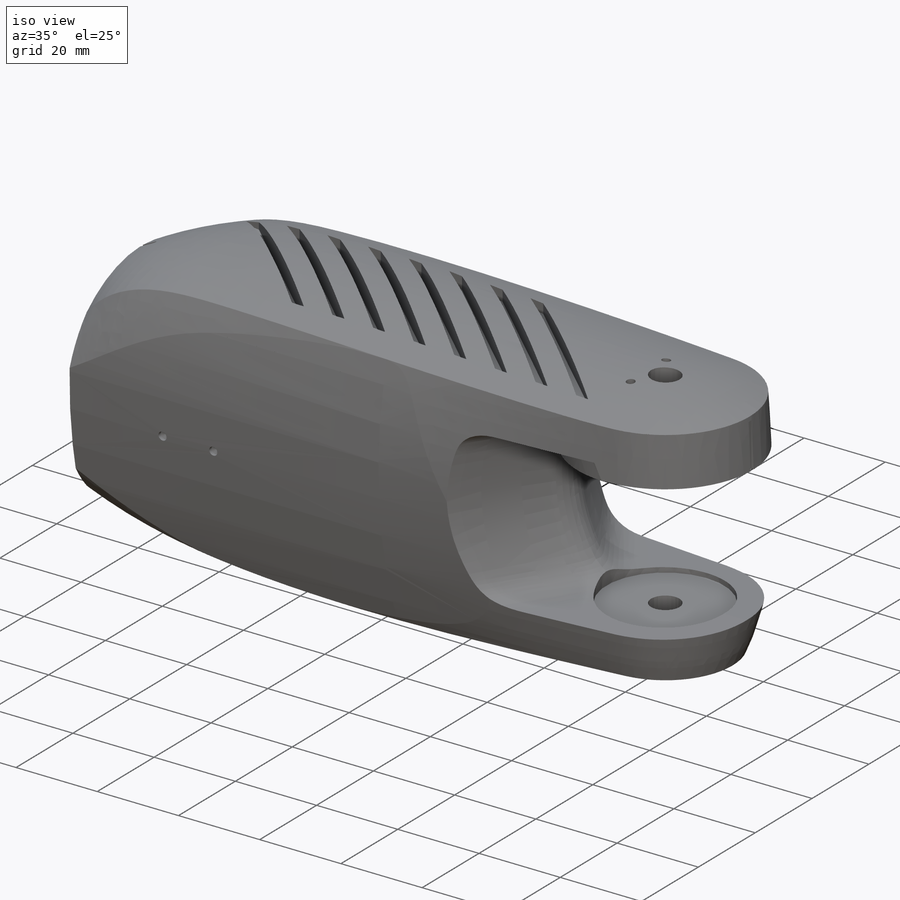
[diagram: iso view]
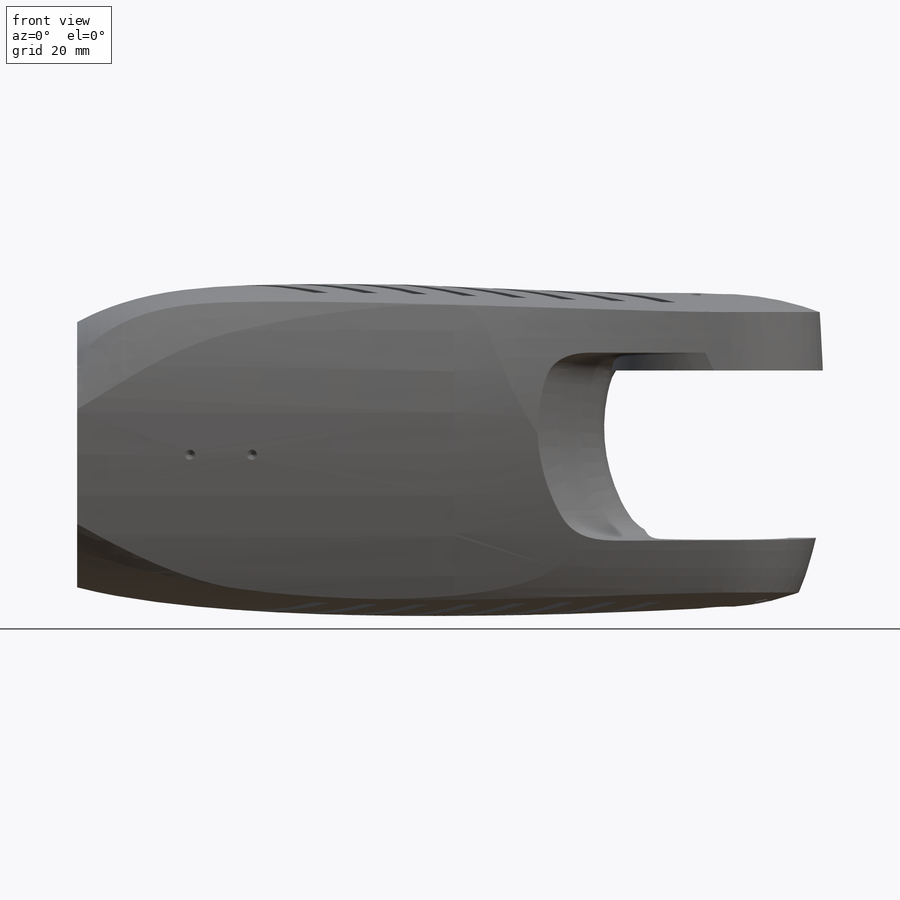
[diagram: front view]
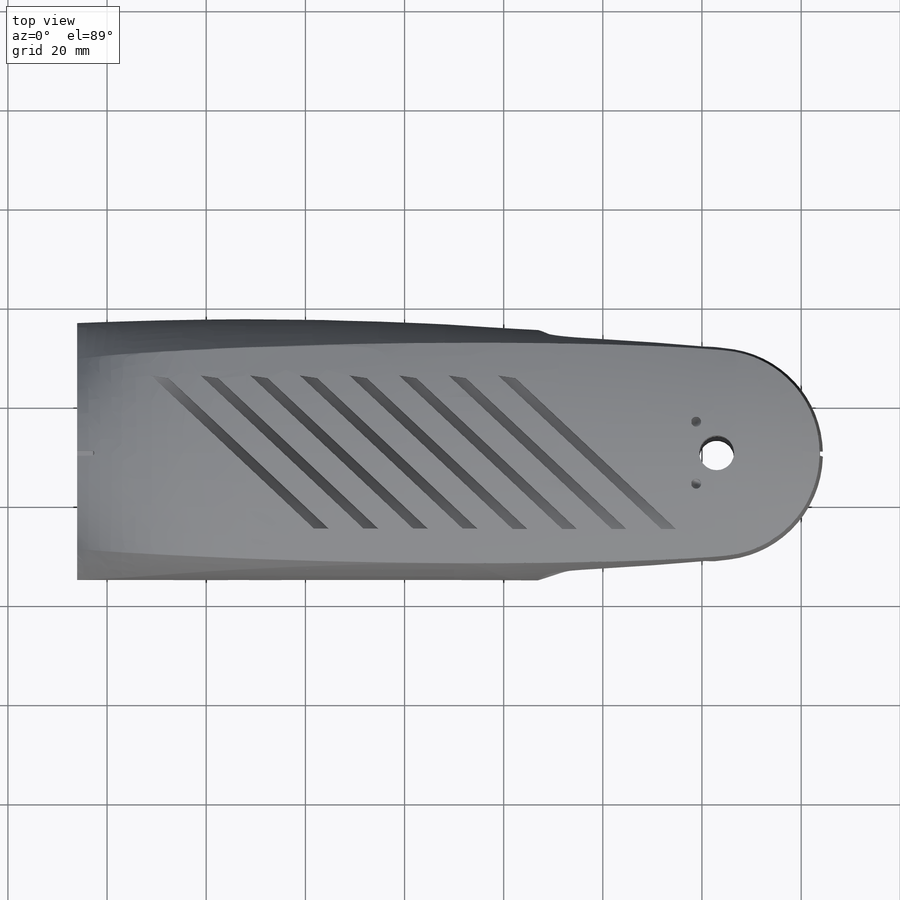
[diagram: top view]
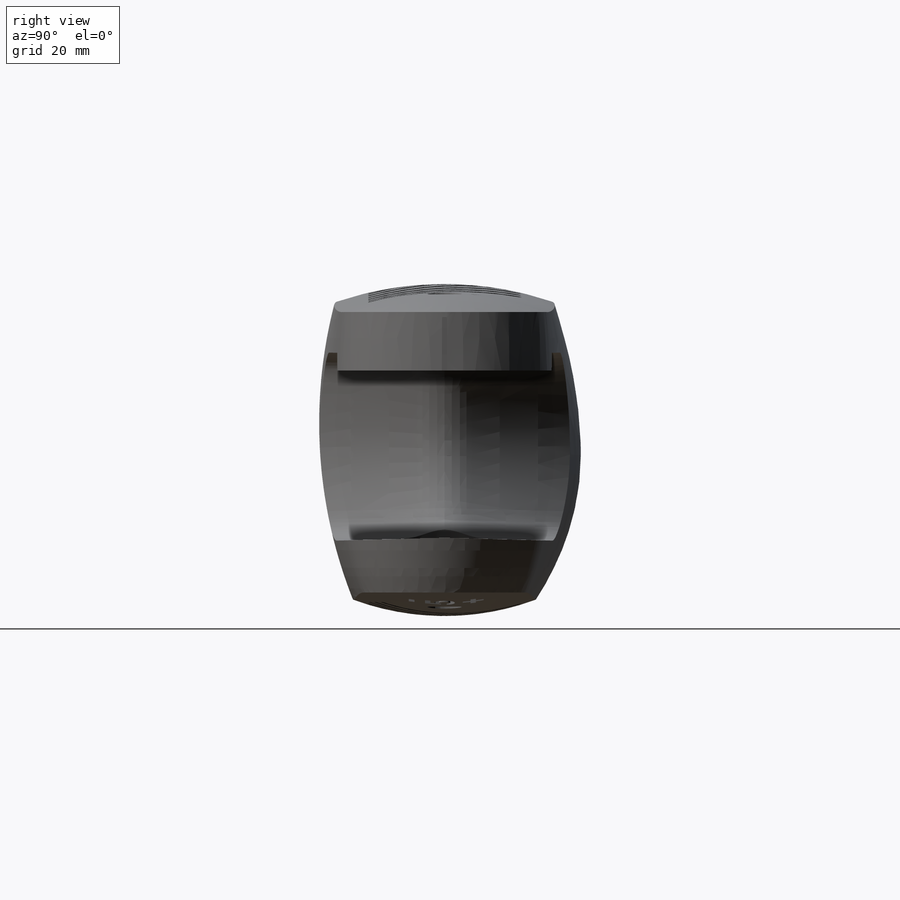
[diagram: right view]
SOLIDWORKS PART (.sldprt)
format: sldprt  version: not decoded by parser v0  size: 3,646,464 bytes
history: native  units: mm
features: sketch x12, cut_extrude x9, plane x7, chamfer x4, extrude x3, mirror x2, delete_body x2, material x1 (+10 scaffold rows collapsed)
feature tree (50):
  scaffold x10  (default folders/planes/origin — collapsed)
  material  "Materiał <nieokreślony>"
  plane  "Płaszczyzna przednia"
  plane  "Płaszczyzna górna"
  plane  "Płaszczyzna prawa"
  plane  "Płaszczyzna1"  Offset=270mm
  sketch  "Szkic3"  dims[D1=7.0mm]
  cut_extrude  "Wytnij-wyciągnięcie3"  Depth=10mm
  sketch  "Szkic4"  dims[D1=19.1mm]
  cut_extrude  "Wytnij-wyciągnięcie4"  Depth=6mm
  plane  "Płaszczyzna2"
  mirror  "Lustro1"
  chamfer  "Sfazowanie2"  Distance=1mm Angle=30deg
  sketch  "Szkic1"
  cut_extrude  "Wytnij-wyciągnięcie1"  [1 undecoded]
  sketch  "Szkic2"  dims[D1=0.01mm]
  delete_body  "Obiekt-Usuń2"
  delete_body  "Powierzchnia-wypełnij6"
  plane  "Płaszczyzna5"  Offset=32mm
  sketch  "Szkic8"  dims[D1=8.0]
  cut_extrude  "Wytnij-wyciągnięcie9"  Depth=4mm
  mirror  "Lustro2"
  cut_extrude  "Wytnij-wyciągnięcie2"  [1 undecoded]
  cut_extrude  "Wytnij-wyciągnięcie10"  [1 undecoded]
  sketch  "Szkic2<2>"
  plane  "Płaszczyzna3"
  sketch  "Szkic5"  dims[D1=5.0mm]
  cut_extrude  "Wytnij-wyciągnięcie5"  Depth=7mm
  extrude  "Dodanie-wyciągnięcie1"  [1 undecoded]
  sketch  "Szkic5<2>"  dims[D1=5.0mm]
  chamfer  "Sfazowanie1"  Distance=1mm Angle=45deg
  chamfer  "Sfazowanie3"  Distance=1mm Angle=45deg
  sketch  "Szkic9"  dims[D1=0.0mm]
  cut_extrude  "Wytnij-wyciągnięcie11"  [1 undecoded]
  sketch  "Szkic10"  dims[D1=0.0mm]
  extrude  "Dodanie-wyciągnięcie2"  Depth=2.5mm
  sketch  "Szkic11"  dims[D1=0.0mm]
  extrude  "Dodanie-wyciągnięcie3"  Depth=1.5mm
  sketch  "Szkic12"  dims[D1=0.0mm D2=0.05mm]
  cut_extrude  "Wytnij-wyciągnięcie12"  Depth=5mm
  chamfer  "Sfazowanie4"  Distance=2mm Angle=45deg
decode coverage: 21 of 32 modeling features carry decoded parameters
note: 5 parameter values undecoded
summary: no parameter record found for 5 features
note: suppression state not decoded; provenance and decode notes live in map.json
